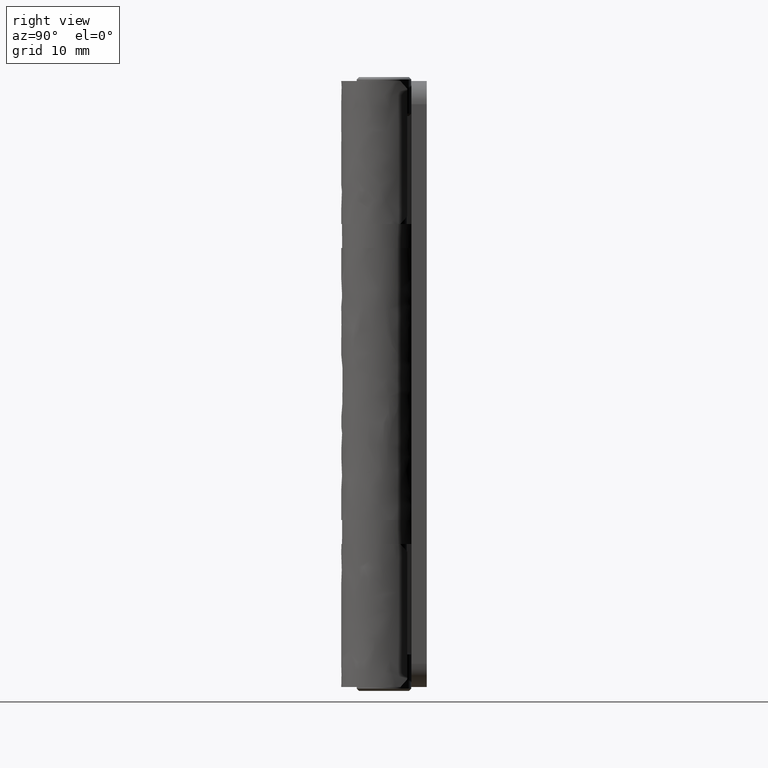
[diagram: clean part render]
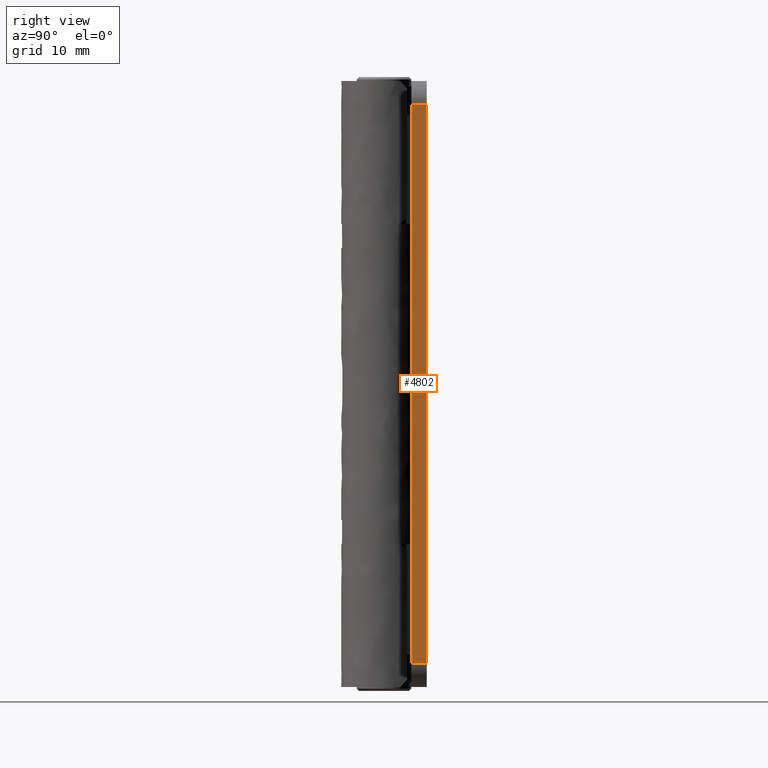
[diagram: same view with one face highlighted and labeled with its STEP entity id]
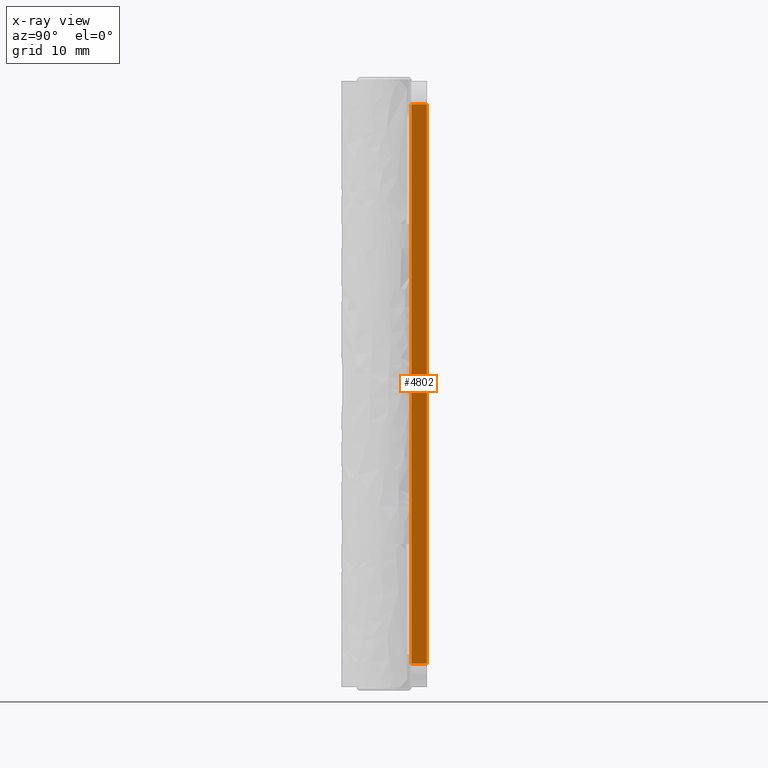
[diagram: x-ray of the same camera — body ghosted, the highlighted face saturated]
A machine part, right view. The second image highlights one B-rep face of the part: STEP entity #4802.
The next image is the same camera in x-ray: the body ghosted, the highlighted face saturated — about 0% of this face is hidden behind the body in this view.
In plain terms, the highlighted face is a freeform B-spline surface patch.
Its self-contained STEP definition (entity closure, byte-faithful):
#3157=CARTESIAN_POINT('',(25.0,5.500000000000229,75.0));
#3158=VERTEX_POINT('',#3157);
#3159=CARTESIAN_POINT('',(25.0,5.500000000000229,3.0));
#3160=VERTEX_POINT('',#3159);
#3161=CARTESIAN_POINT('',(25.0,5.500000000000229,75.0));
#3162=CARTESIAN_POINT('',(25.0,5.500000000000229,3.0));
#3163=QUASI_UNIFORM_CURVE('',1,(#3161,#3162),.UNSPECIFIED.,.F.,.U.);
#3164=EDGE_CURVE('',#3158,#3160,#3163,.T.);
#3759=CARTESIAN_POINT('',(25.0,3.500000000000000,75.0));
#3760=VERTEX_POINT('',#3759);
#3774=CARTESIAN_POINT('',(25.0,5.500000000000229,75.0));
#3775=CARTESIAN_POINT('',(25.0,3.500000000000000,75.0));
#3776=QUASI_UNIFORM_CURVE('',1,(#3774,#3775),.UNSPECIFIED.,.F.,.U.);
#3777=EDGE_CURVE('',#3158,#3760,#3776,.T.);
#3797=CARTESIAN_POINT('',(25.0,3.500000000000000,3.0));
#3798=VERTEX_POINT('',#3797);
#3799=CARTESIAN_POINT('',(25.0,3.500000000000000,3.0));
#3800=CARTESIAN_POINT('',(25.0,5.500000000000229,3.0));
#3801=QUASI_UNIFORM_CURVE('',1,(#3799,#3800),.UNSPECIFIED.,.F.,.U.);
#3802=EDGE_CURVE('',#3798,#3160,#3801,.T.);
#4787=CARTESIAN_POINT('',(25.0,3.400100003876376,78.596399860450020));
#4788=CARTESIAN_POINT('',(25.0,3.400100003876376,-0.596401791640516));
#4789=CARTESIAN_POINT('',(25.0,5.599900049768032,78.596399860450020));
#4790=CARTESIAN_POINT('',(25.0,5.599900049768032,-0.596401791640516));
#4791=B_SPLINE_SURFACE_WITH_KNOTS('',1,1,((#4787,#4789),(#4788,#4790)),.UNSPECIFIED.,.F.,.F.,.U.,(2,2),(2,2),(0.0,79.192801652090537),(0.0,2.199800045891656),.UNSPECIFIED.);
#4792=CARTESIAN_POINT('',(25.0,3.500000000000000,75.0));
#4793=CARTESIAN_POINT('',(25.0,3.500000000000000,3.0));
#4794=QUASI_UNIFORM_CURVE('',1,(#4792,#4793),.UNSPECIFIED.,.F.,.U.);
#4795=EDGE_CURVE('',#3760,#3798,#4794,.T.);
#4796=ORIENTED_EDGE('',*,*,#4795,.T.);
#4797=ORIENTED_EDGE('',*,*,#3802,.T.);
#4798=ORIENTED_EDGE('',*,*,#3164,.F.);
#4799=ORIENTED_EDGE('',*,*,#3777,.T.);
#4800=EDGE_LOOP('',(#4796,#4797,#4798,#4799));
#4801=FACE_OUTER_BOUND('',#4800,.T.);
#4802=ADVANCED_FACE('',(#4801),#4791,.T.);